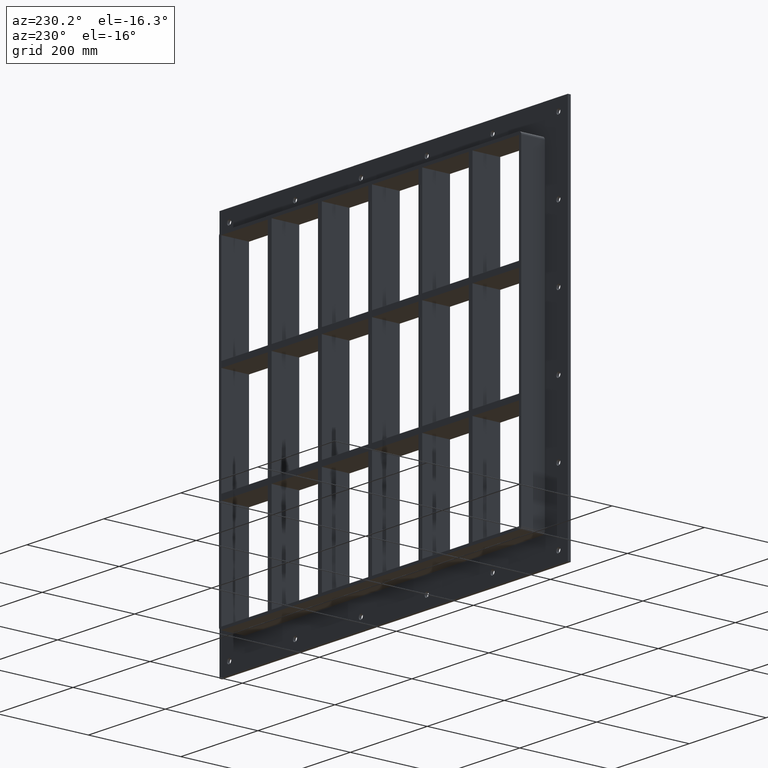
[diagram: clean part render]
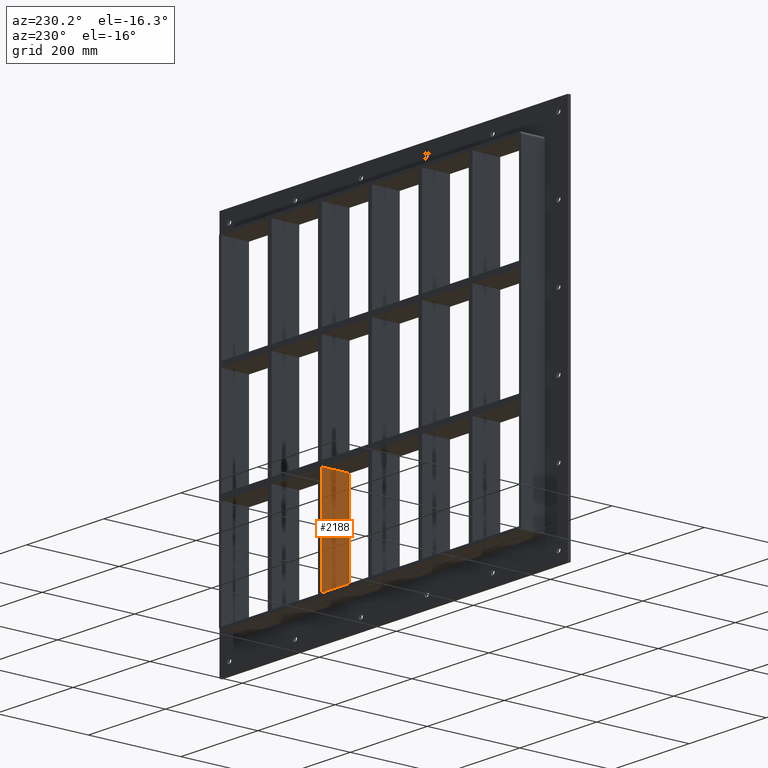
[diagram: same view with one face highlighted and labeled with its STEP entity id]
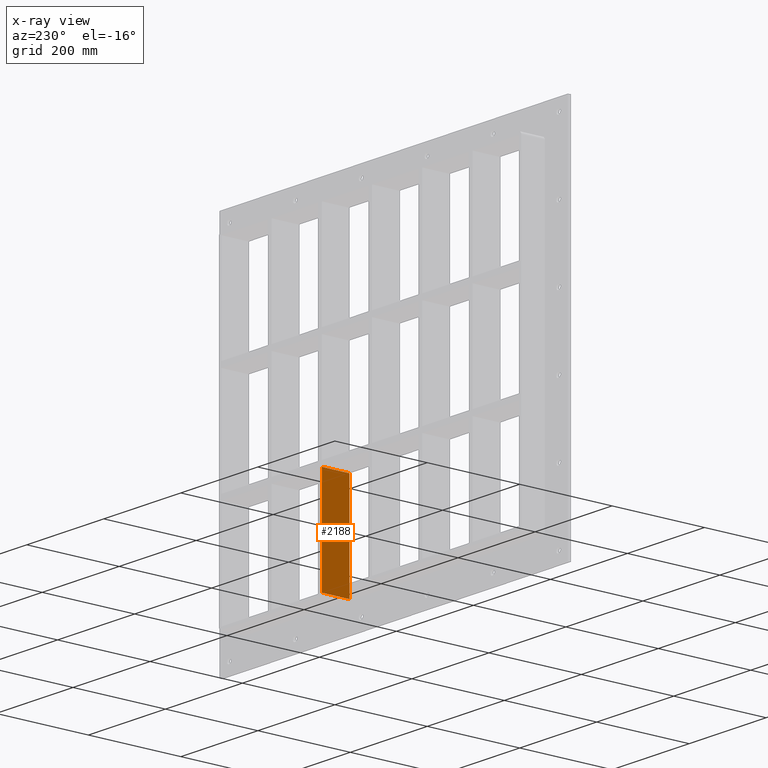
[diagram: x-ray of the same camera — body ghosted, the highlighted face saturated]
A machine part, auxiliary view. The second image highlights one B-rep face of the part: STEP entity #2188.
The next image is the same camera in x-ray: the body ghosted, the highlighted face saturated — about 0% of this face is hidden behind the body in this view.
In plain terms, the highlighted planar face has unit normal (-1, 0, 0).
Its self-contained STEP definition (entity closure, byte-faithful):
#1910=CARTESIAN_POINT('',(125.49999999999798,57.0,-339.0));
#1911=VERTEX_POINT('',#1910);
#1912=CARTESIAN_POINT('',(125.49999999999793,57.0,-121.00000000001015));
#1913=VERTEX_POINT('',#1912);
#1914=CARTESIAN_POINT('',(125.49999999999798,57.0,-339.0));
#1915=DIRECTION('',(0.0,0.0,1.0));
#1916=VECTOR('',#1915,217.99999999998985);
#1917=LINE('',#1914,#1916);
#1918=EDGE_CURVE('',#1911,#1913,#1917,.T.);
#2158=CARTESIAN_POINT('',(125.49999999999798,-3.0,-339.0));
#2159=DIRECTION('',(-1.0,0.0,0.0));
#2160=DIRECTION('',(0.0,0.0,1.0));
#2161=AXIS2_PLACEMENT_3D('',#2158,#2159,#2160);
#2162=PLANE('',#2161);
#2163=CARTESIAN_POINT('',(125.49999999999793,-3.0,-121.00000000001015));
#2164=VERTEX_POINT('',#2163);
#2165=CARTESIAN_POINT('',(125.49999999999795,57.0,-121.00000000001016));
#2166=DIRECTION('',(0.0,-1.0,0.0));
#2167=VECTOR('',#2166,60.0);
#2168=LINE('',#2165,#2167);
#2169=EDGE_CURVE('',#1913,#2164,#2168,.T.);
#2170=ORIENTED_EDGE('',*,*,#2169,.F.);
#2171=ORIENTED_EDGE('',*,*,#1918,.F.);
#2172=CARTESIAN_POINT('',(125.49999999999798,-3.0,-339.0));
#2173=VERTEX_POINT('',#2172);
#2174=CARTESIAN_POINT('',(125.49999999999798,-3.0,-339.0));
#2175=DIRECTION('',(0.0,1.0,0.0));
#2176=VECTOR('',#2175,60.000000000000007);
#2177=LINE('',#2174,#2176);
#2178=EDGE_CURVE('',#2173,#1911,#2177,.T.);
#2179=ORIENTED_EDGE('',*,*,#2178,.F.);
#2180=CARTESIAN_POINT('',(125.49999999999798,-3.0,-339.0));
#2181=DIRECTION('',(0.0,0.0,1.0));
#2182=VECTOR('',#2181,217.99999999998985);
#2183=LINE('',#2180,#2182);
#2184=EDGE_CURVE('',#2173,#2164,#2183,.T.);
#2185=ORIENTED_EDGE('',*,*,#2184,.T.);
#2186=EDGE_LOOP('',(#2170,#2171,#2179,#2185));
#2187=FACE_OUTER_BOUND('',#2186,.T.);
#2188=ADVANCED_FACE('',(#2187),#2162,.T.);